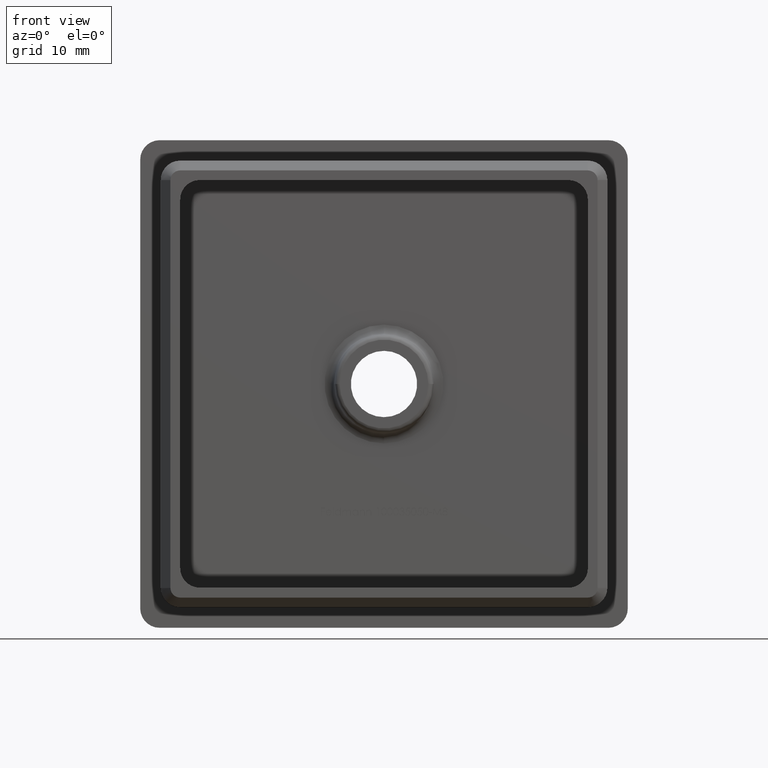
[diagram: clean part render]
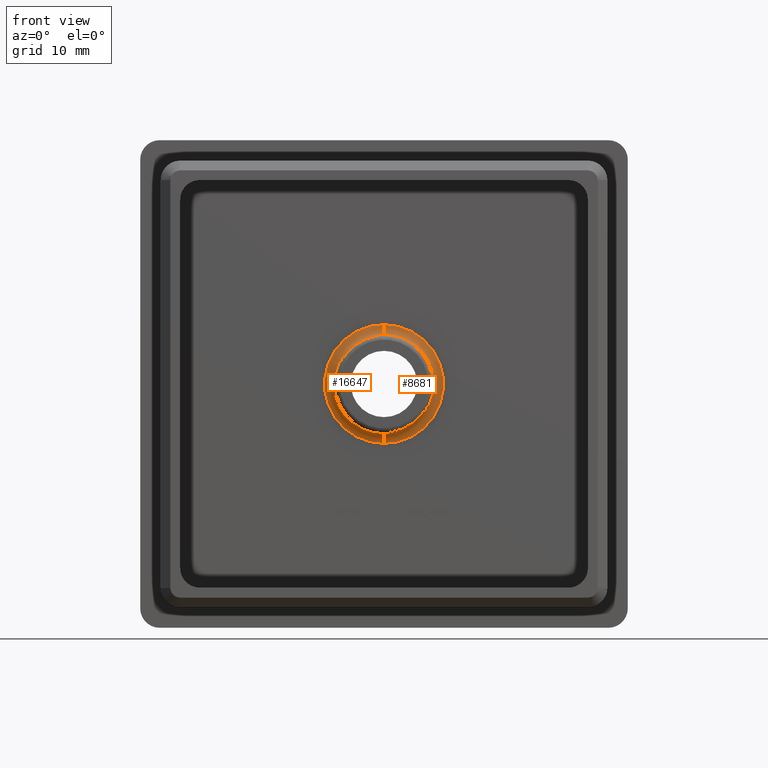
[diagram: same view with one multi-face feature highlighted, each face labeled with its STEP entity id]
A machine part, front view. The highlighted faces form ONE feature: a constant-radius fillet chain: 2 tangent blend faces with common blend radius 1 mm. The faces share edges in the B-rep.
Their STEP definitions:
[1] entity #8681 (Torus):
#41 = EDGE_CURVE ( 'NONE', #297, #339, #242, .T. ) ;
#84 = CIRCLE ( 'NONE', #5901, 5.095113802977517800 ) ;
#223 = CARTESIAN_POINT ( 'NONE',  ( 1.001573005813146500E-015, -1.000000000000000000, -6.091308501069263100 ) ) ;
#242 = CIRCLE ( 'NONE', #13167, 1.000000000000000000 ) ;
#297 = VERTEX_POINT ( 'NONE', #10226 ) ;
#339 = VERTEX_POINT ( 'NONE', #12874 ) ;
#539 = DIRECTION ( 'NONE',  ( -1.000000000000000000, -1.276755198502429000E-016, 0.0000000000000000000 ) ) ;
#783 = DIRECTION ( 'NONE',  ( 0.0000000000000000000, 0.0000000000000000000, 1.000000000000000000 ) ) ;
#1126 = VERTEX_POINT ( 'NONE', #11464 ) ;
#1558 = CIRCLE ( 'NONE', #14933, 1.000000000000000000 ) ;
#1625 = DIRECTION ( 'NONE',  ( 0.0000000000000000000, 0.0000000000000000000, 1.000000000000000000 ) ) ;
#2254 = ORIENTED_EDGE ( 'NONE', *, *, #7454, .F. ) ;
#2837 = AXIS2_PLACEMENT_3D ( 'NONE', #17220, #10260, #539 ) ;
#3843 = AXIS2_PLACEMENT_3D ( 'NONE', #17289, #16025, #783 ) ;
#4187 = CIRCLE ( 'NONE', #3843, 6.091308501069263100 ) ;
#4960 = DIRECTION ( 'NONE',  ( 1.224646799147353500E-016, -1.000000000000000000, 0.0000000000000000000 ) ) ;
#5328 = ORIENTED_EDGE ( 'NONE', *, *, #12180, .F. ) ;
#5709 = DIRECTION ( 'NONE',  ( 0.0000000000000000000, 1.000000000000000000, 0.0000000000000000000 ) ) ;
#5901 = AXIS2_PLACEMENT_3D ( 'NONE', #10595, #4960, #9233 ) ;
#6474 = EDGE_CURVE ( 'NONE', #6552, #1126, #1558, .T. ) ;
#6552 = VERTEX_POINT ( 'NONE', #17743 ) ;
#7227 = CARTESIAN_POINT ( 'NONE',  ( 2.556028599677928600E-016, -1.000000000000000000, 6.091308501069263100 ) ) ;
#7454 = EDGE_CURVE ( 'NONE', #9022, #339, #84, .T. ) ;
#8681 = ADVANCED_FACE ( 'NONE', ( #12164 ), #11735, .F. ) ;
#9022 = VERTEX_POINT ( 'NONE', #17589 ) ;
#9233 = DIRECTION ( 'NONE',  ( -1.000000000000000000, -1.276755198502429000E-016, 0.0000000000000000000 ) ) ;
#9903 = DIRECTION ( 'NONE',  ( 1.224646799147352500E-016, 0.0000000000000000000, -1.000000000000000000 ) ) ;
#10226 = CARTESIAN_POINT ( 'NONE',  ( 2.556028599677928600E-016, 0.0000000000000000000, 6.091308501069263100 ) ) ;
#10260 = DIRECTION ( 'NONE',  ( 1.224646799147353500E-016, -1.000000000000000000, 0.0000000000000000000 ) ) ;
#10373 = EDGE_LOOP ( 'NONE', ( #11059, #5328, #13305, #2254, #17062 ) ) ;
#10595 = CARTESIAN_POINT ( 'NONE',  ( 2.556028599677928600E-016, -0.9128442572523486300, 1.984021111433010100E-016 ) ) ;
#11059 = ORIENTED_EDGE ( 'NONE', *, *, #6474, .F. ) ;
#11464 = CARTESIAN_POINT ( 'NONE',  ( 9.405736733958655000E-016, -0.9128442572523486300, -5.095113802977517800 ) ) ;
#11681 = DIRECTION ( 'NONE',  ( -1.000000000000000000, 0.0000000000000000000, 0.0000000000000000000 ) ) ;
#11735 = TOROIDAL_SURFACE ( 'NONE', #17593, 6.091308501069263100, 1.000000000000000000 ) ;
#12164 = FACE_OUTER_BOUND ( 'NONE', #10373, .T. ) ;
#12180 = EDGE_CURVE ( 'NONE', #297, #6552, #4187, .T. ) ;
#12496 = CARTESIAN_POINT ( 'NONE',  ( 2.556028599677928600E-016, -1.000000000000000000, 1.984021111433010100E-016 ) ) ;
#12874 = CARTESIAN_POINT ( 'NONE',  ( 2.556028599677929600E-016, -0.9128442572523486300, 5.095113802977517800 ) ) ;
#13018 = DIRECTION ( 'NONE',  ( 0.0000000000000000000, 0.0000000000000000000, 1.000000000000000000 ) ) ;
#13167 = AXIS2_PLACEMENT_3D ( 'NONE', #7227, #11681, #13018 ) ;
#13305 = ORIENTED_EDGE ( 'NONE', *, *, #41, .T. ) ;
#13425 = CIRCLE ( 'NONE', #2837, 5.095113802977517800 ) ;
#14933 = AXIS2_PLACEMENT_3D ( 'NONE', #223, #16631, #9903 ) ;
#15449 = EDGE_CURVE ( 'NONE', #1126, #9022, #13425, .T. ) ;
#16025 = DIRECTION ( 'NONE',  ( 0.0000000000000000000, 1.000000000000000000, 0.0000000000000000000 ) ) ;
#16631 = DIRECTION ( 'NONE',  ( 1.000000000000000000, -0.0000000000000000000, 1.224646799147353200E-016 ) ) ;
#17062 = ORIENTED_EDGE ( 'NONE', *, *, #15449, .F. ) ;
#17220 = CARTESIAN_POINT ( 'NONE',  ( 2.556028599677928600E-016, -0.9128442572523486300, 1.984021111433010100E-016 ) ) ;
#17289 = CARTESIAN_POINT ( 'NONE',  ( 2.556028599677928600E-016, 0.0000000000000000000, 1.984021111433010100E-016 ) ) ;
#17589 = CARTESIAN_POINT ( 'NONE',  ( 5.095113802977517800, -0.9128442572523479700, 6.239714810107915300E-016 ) ) ;
#17593 = AXIS2_PLACEMENT_3D ( 'NONE', #12496, #5709, #1625 ) ;
#17743 = CARTESIAN_POINT ( 'NONE',  ( 1.001573005813146500E-015, 0.0000000000000000000, -6.091308501069263100 ) ) ;
[2] entity #16647 (Torus):
#41 = EDGE_CURVE ( 'NONE', #297, #339, #242, .T. ) ;
#223 = CARTESIAN_POINT ( 'NONE',  ( 1.001573005813146500E-015, -1.000000000000000000, -6.091308501069263100 ) ) ;
#242 = CIRCLE ( 'NONE', #13167, 1.000000000000000000 ) ;
#297 = VERTEX_POINT ( 'NONE', #10226 ) ;
#339 = VERTEX_POINT ( 'NONE', #12874 ) ;
#559 = EDGE_CURVE ( 'NONE', #4040, #1126, #9974, .T. ) ;
#704 = EDGE_LOOP ( 'NONE', ( #15293, #14540, #1777, #12261, #14239 ) ) ;
#880 = FACE_OUTER_BOUND ( 'NONE', #704, .T. ) ;
#1126 = VERTEX_POINT ( 'NONE', #11464 ) ;
#1558 = CIRCLE ( 'NONE', #14933, 1.000000000000000000 ) ;
#1777 = ORIENTED_EDGE ( 'NONE', *, *, #559, .F. ) ;
#2237 = DIRECTION ( 'NONE',  ( 0.0000000000000000000, 1.000000000000000000, 0.0000000000000000000 ) ) ;
#2392 = AXIS2_PLACEMENT_3D ( 'NONE', #3551, #17177, #4919 ) ;
#3051 = DIRECTION ( 'NONE',  ( -1.000000000000000000, -1.276755198502429000E-016, 0.0000000000000000000 ) ) ;
#3542 = DIRECTION ( 'NONE',  ( 1.224646799147353500E-016, -1.000000000000000000, 0.0000000000000000000 ) ) ;
#3551 = CARTESIAN_POINT ( 'NONE',  ( 2.556028599677928600E-016, -1.000000000000000000, 1.984021111433010100E-016 ) ) ;
#4040 = VERTEX_POINT ( 'NONE', #17549 ) ;
#4204 = CIRCLE ( 'NONE', #16566, 6.091308501069263100 ) ;
#4793 = CARTESIAN_POINT ( 'NONE',  ( 2.556028599677928600E-016, -0.9128442572523486300, 1.984021111433010100E-016 ) ) ;
#4881 = AXIS2_PLACEMENT_3D ( 'NONE', #7219, #5801, #3051 ) ;
#4919 = DIRECTION ( 'NONE',  ( 0.0000000000000000000, 0.0000000000000000000, 1.000000000000000000 ) ) ;
#5801 = DIRECTION ( 'NONE',  ( 1.224646799147353500E-016, -1.000000000000000000, 0.0000000000000000000 ) ) ;
#6322 = CARTESIAN_POINT ( 'NONE',  ( 2.556028599677928600E-016, 0.0000000000000000000, 1.984021111433010100E-016 ) ) ;
#6474 = EDGE_CURVE ( 'NONE', #6552, #1126, #1558, .T. ) ;
#6552 = VERTEX_POINT ( 'NONE', #17743 ) ;
#7219 = CARTESIAN_POINT ( 'NONE',  ( 2.556028599677928600E-016, -0.9128442572523486300, 1.984021111433010100E-016 ) ) ;
#7227 = CARTESIAN_POINT ( 'NONE',  ( 2.556028599677928600E-016, -1.000000000000000000, 6.091308501069263100 ) ) ;
#7569 = TOROIDAL_SURFACE ( 'NONE', #2392, 6.091308501069263100, 1.000000000000000000 ) ;
#9186 = EDGE_CURVE ( 'NONE', #339, #4040, #11775, .T. ) ;
#9903 = DIRECTION ( 'NONE',  ( 1.224646799147352500E-016, 0.0000000000000000000, -1.000000000000000000 ) ) ;
#9974 = CIRCLE ( 'NONE', #17768, 5.095113802977517800 ) ;
#10226 = CARTESIAN_POINT ( 'NONE',  ( 2.556028599677928600E-016, 0.0000000000000000000, 6.091308501069263100 ) ) ;
#11180 = EDGE_CURVE ( 'NONE', #6552, #297, #4204, .T. ) ;
#11464 = CARTESIAN_POINT ( 'NONE',  ( 9.405736733958655000E-016, -0.9128442572523486300, -5.095113802977517800 ) ) ;
#11681 = DIRECTION ( 'NONE',  ( -1.000000000000000000, 0.0000000000000000000, 0.0000000000000000000 ) ) ;
#11775 = CIRCLE ( 'NONE', #4881, 5.095113802977517800 ) ;
#11865 = DIRECTION ( 'NONE',  ( -1.000000000000000000, -1.276755198502429000E-016, 0.0000000000000000000 ) ) ;
#12261 = ORIENTED_EDGE ( 'NONE', *, *, #9186, .F. ) ;
#12874 = CARTESIAN_POINT ( 'NONE',  ( 2.556028599677929600E-016, -0.9128442572523486300, 5.095113802977517800 ) ) ;
#13018 = DIRECTION ( 'NONE',  ( 0.0000000000000000000, 0.0000000000000000000, 1.000000000000000000 ) ) ;
#13167 = AXIS2_PLACEMENT_3D ( 'NONE', #7227, #11681, #13018 ) ;
#14239 = ORIENTED_EDGE ( 'NONE', *, *, #41, .F. ) ;
#14540 = ORIENTED_EDGE ( 'NONE', *, *, #6474, .T. ) ;
#14664 = DIRECTION ( 'NONE',  ( 0.0000000000000000000, 0.0000000000000000000, 1.000000000000000000 ) ) ;
#14933 = AXIS2_PLACEMENT_3D ( 'NONE', #223, #16631, #9903 ) ;
#15293 = ORIENTED_EDGE ( 'NONE', *, *, #11180, .F. ) ;
#16566 = AXIS2_PLACEMENT_3D ( 'NONE', #6322, #2237, #14664 ) ;
#16631 = DIRECTION ( 'NONE',  ( 1.000000000000000000, -0.0000000000000000000, 1.224646799147353200E-016 ) ) ;
#16647 = ADVANCED_FACE ( 'NONE', ( #880 ), #7569, .F. ) ;
#17177 = DIRECTION ( 'NONE',  ( 0.0000000000000000000, 1.000000000000000000, 0.0000000000000000000 ) ) ;
#17549 = CARTESIAN_POINT ( 'NONE',  ( -5.095113802977517800, -0.9128442572523493000, 0.0000000000000000000 ) ) ;
#17743 = CARTESIAN_POINT ( 'NONE',  ( 1.001573005813146500E-015, 0.0000000000000000000, -6.091308501069263100 ) ) ;
#17768 = AXIS2_PLACEMENT_3D ( 'NONE', #4793, #3542, #11865 ) ;